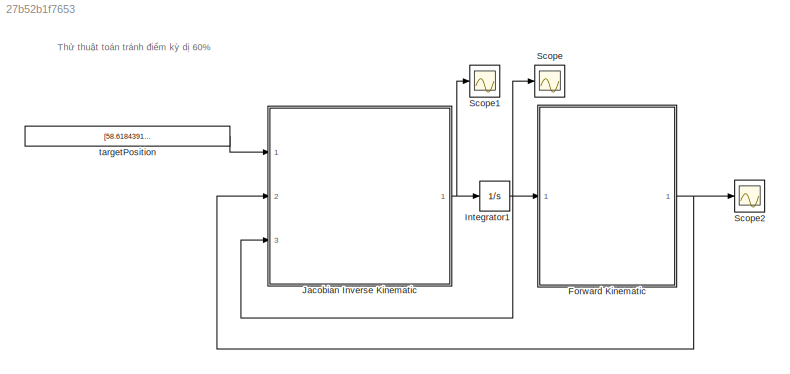
MODEL slx_27b52b1f7653
KIND model
CONFIG AbsTol = auto
CONFIG EnableMultiTasking = off
CONFIG FixedStep = 0.01
CONFIG MaxStep = auto
CONFIG MinStep = auto
CONFIG RelTol = 1e-3
CONFIG SampleTimeConstraint = Unconstrained
CONFIG SolverName = FixedStepAuto
CONFIG StartTime = 0.0
CONFIG StopTime = 1000
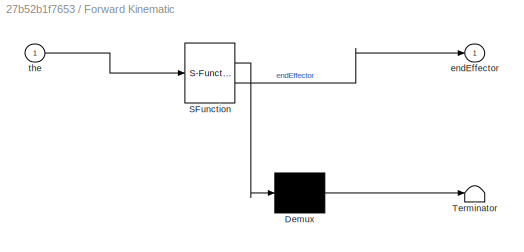
BLOCK [SubSystem] Forward Kinematic
  ErrorFcn = Stateflow.Translate.translate
  PermitHierarchicalResolution = ExplicitOnly
  Ports = [1, 1]
  RequestExecContextInheritance = off
  SFBlockType = MATLAB Function
  TreatAsAtomicUnit = on
BLOCK [Demux] Forward Kinematic/ Demux 
  Outputs = 1
  Ports = [1, 1]
BLOCK [S-Function] Forward Kinematic/ SFunction 
  EnableBusSupport = on
  FunctionName = sf_sfun
  PortCounts = [1 2]
  Ports = [1, 2]
  SFcnIsStateOwnerBlock = off
  SFunctionDeploymentMode = off
  Tag = Stateflow S-Function 6
BLOCK [Terminator] Forward Kinematic/ Terminator 
BLOCK [Outport] Forward Kinematic/endEffector
BLOCK [Inport] Forward Kinematic/the
BLOCK [Integrator] Integrator1
  InitialCondition = [0;0;0;0;0.00001;0]
  Ports = [1, 1]
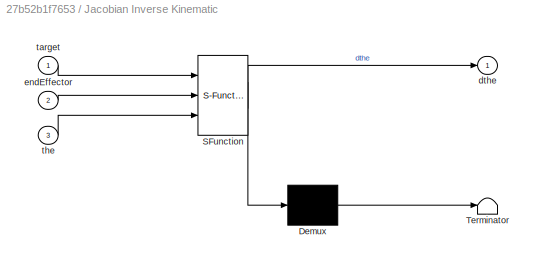
BLOCK [SubSystem] Jacobian Inverse Kinematic
  ErrorFcn = Stateflow.Translate.translate
  PermitHierarchicalResolution = ExplicitOnly
  Ports = [3, 1]
  RequestExecContextInheritance = off
  SFBlockType = MATLAB Function
  TreatAsAtomicUnit = on
BLOCK [Demux] Jacobian Inverse Kinematic/ Demux 
  Outputs = 1
  Ports = [1, 1]
BLOCK [S-Function] Jacobian Inverse Kinematic/ SFunction 
  EnableBusSupport = on
  FunctionName = sf_sfun
  PortCounts = [3 2]
  Ports = [3, 2]
  SFcnIsStateOwnerBlock = off
  SFunctionDeploymentMode = off
  Tag = Stateflow S-Function 5
BLOCK [Terminator] Jacobian Inverse Kinematic/ Terminator 
BLOCK [Outport] Jacobian Inverse Kinematic/dthe
BLOCK [Inport] Jacobian Inverse Kinematic/endEffector
  Port = 2
BLOCK [Inport] Jacobian Inverse Kinematic/target
BLOCK [Inport] Jacobian Inverse Kinematic/the
  Port = 3
BLOCK [Scope] Scope
  Floating = off
  NumInputPorts = 1
  Ports = [1]
  ScopeSpecificationString = Simulink.scopes.TimeScopeBlockCfg('CurrentConfiguration', extmgr.ConfigurationSet(extmgr.Configuration('Core','General UI',true),extmgr.Configuration('Core','Source UI',true),extmgr.Configuration('Sources','WiredSimulink',true),extmgr.Configuration('Visuals','Time Domain',true,'SerializedDisplays',{struct('MinYLimReal','-255.39996','MaxYLimReal','207.41129','YLabelReal','','MinYLimMag',' 0.00000',...<+1639ch>
BLOCK [Scope] Scope1
  Floating = off
  NumInputPorts = 1
  Ports = [1]
  ScopeSpecificationString = Simulink.scopes.TimeScopeBlockCfg('CurrentConfiguration', extmgr.ConfigurationSet(extmgr.Configuration('Core','General UI',true),extmgr.Configuration('Core','Source UI',true),extmgr.Configuration('Sources','WiredSimulink',true,'DataLoggingVariableName','ScopeData1'),extmgr.Configuration('Visuals','Time Domain',true,'SerializedDisplays',{struct('MinYLimReal','-937.40644','MaxYLimReal','480.00181','...<+1627ch>
BLOCK [Scope] Scope2
  Floating = off
  NumInputPorts = 1
  Ports = [1]
  ScopeSpecificationString = Simulink.scopes.TimeScopeBlockCfg('CurrentConfiguration', extmgr.ConfigurationSet(extmgr.Configuration('Core','General UI',true),extmgr.Configuration('Core','Source UI',true),extmgr.Configuration('Sources','WiredSimulink',true,'DataLoggingVariableName','ScopeData1'),extmgr.Configuration('Visuals','Time Domain',true,'SerializedDisplays',{struct('MinYLimReal','-692.67482','MaxYLimReal','903.30425','...<+2012ch>
BLOCK [Constant] targetPosition
  Value = [58.618439146317186;33.843371620601914;3.865583598499061e+02;0.5;0.5;0.5]
ANNOTATION (root): Thử thuật toán tránh điểm kỳ dị 60%
NET Forward Kinematic:1 -> Jacobian Inverse Kinematic:2, Scope2:1
NET Integrator1:1 -> Forward Kinematic:1, Jacobian Inverse Kinematic:3, Scope:1
NET Jacobian Inverse Kinematic:1 -> Integrator1:1, Scope1:1
LINE targetPosition:1 -> Jacobian Inverse Kinematic:1
note: NET lines group one-source signal fan-out (src -> all destinations, sorted); 1:1 wires keep LINE
CHART Forward Kinematic states=1 transitions=1
  STATE_LABEL 'eML_blk_kernel()'
  STATE_LABEL 'SCRIPT:\nfunction endEffector = FK(the)\nthe1 = the(1);\nthe2 = the(2);\nthe3 = the(3);\nthe4 = the(4);\nthe5 = the(5);\nthe6 = the(6);\na1=75; a2=270; a3=90; d1=335; d4=295; d7=80;\nT_0_EE = ...\n[ cos(the6)*(cos(the5)*sin(the1)*sin(the4) + cos(the2 + the3)*cos(the1)*sin(the5) + cos(the1)*cos(the2)*cos(the4)*cos(the5)*sin(the3) + cos(the1)*cos(the3)*cos(the4)*cos(the5)*sin(the2)) - sin(the6)*(cos(the1)*cos...<+3608ch>'
CHART Jacobian Inverse Kinematic states=1 transitions=1
  STATE_LABEL 'eML_blk_kernel()'
  STATE_LABEL 'SCRIPT:\nfunction dthe = JacobianIK(target,endEffector,the)\nthe1 = the(1);\nthe2 = the(2);\nthe3 = the(3);\nthe4 = the(4);\nthe5 = the(5);\nthe6 = the(6);\n\na1=75; a2=270; a3=90; d1=335; d4=295; d7=80;\nJ = ...\n[ d4*sin(the1)*sin(the2)*sin(the3) - a2*sin(the1)*sin(the2) - d4*cos(the2)*cos(the3)*sin(the1) - a3*cos(the2)*sin(the1)*sin(the3) - a3*cos(the3)*sin(the1)*sin(the2) - d7*cos(the1)*sin(the4)*sin(the...<+3608ch>'
CHART  states=0 transitions=0
CHART  states=0 transitions=0
